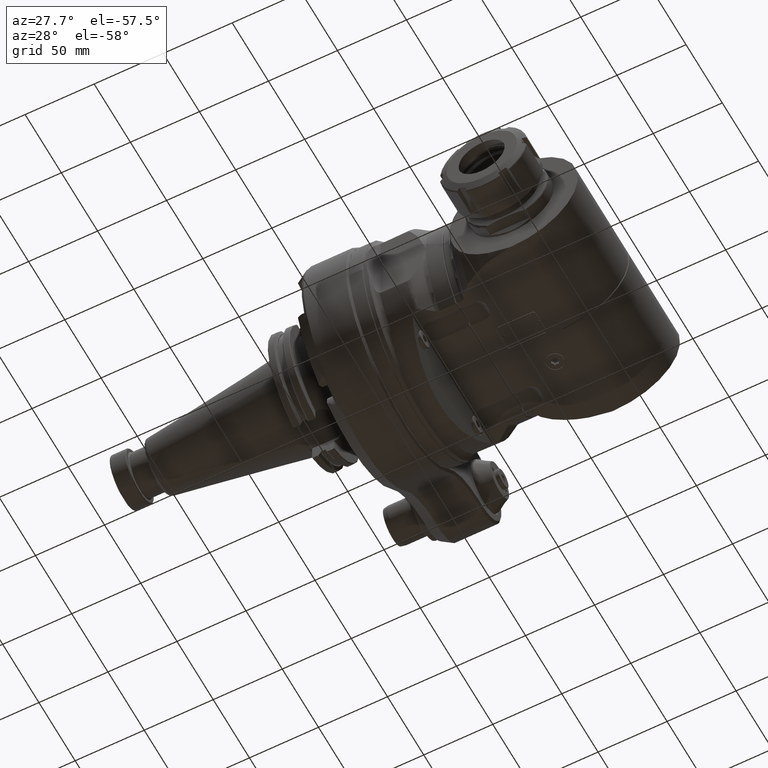
[diagram: clean part render]
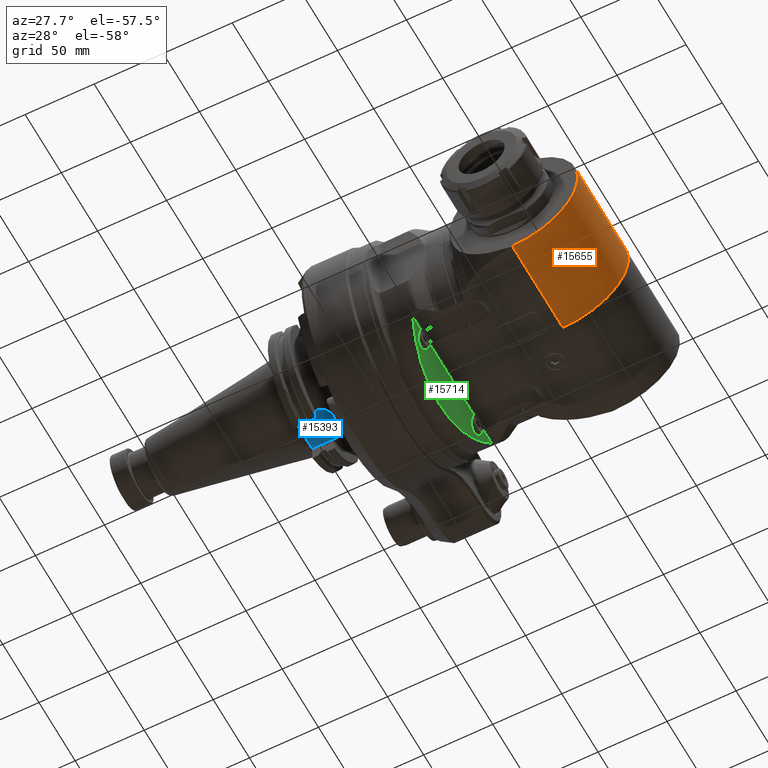
[diagram: same view with three faces highlighted in distinct colors, each labeled with its STEP entity id]
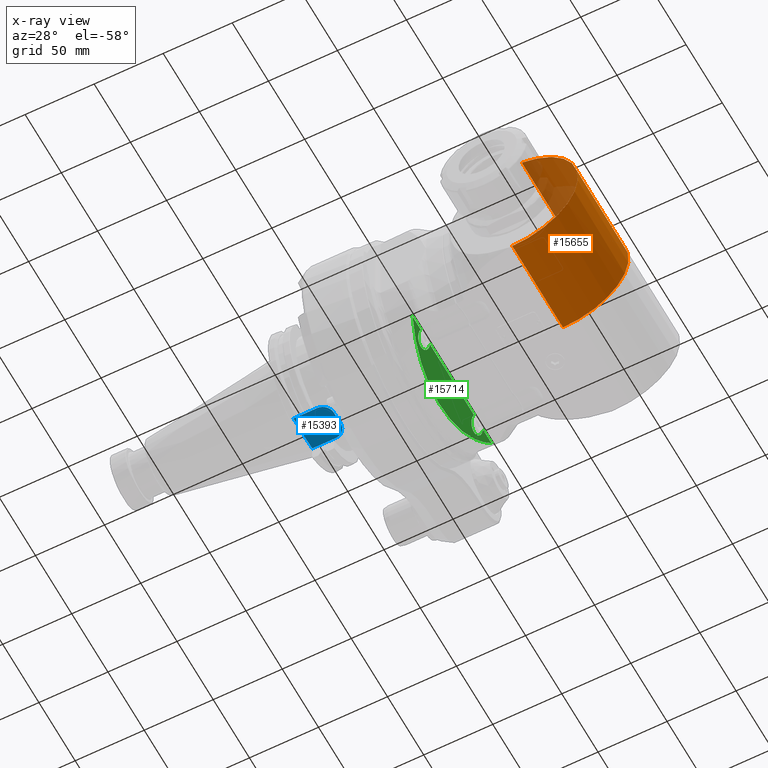
[diagram: x-ray of the same camera — body ghosted, the three highlighted faces saturated]
A machine part, auxiliary view with three faces highlighted in distinct colors.
The next image is the same camera in x-ray (body ghosted, the three faces saturated) — at least one of them is partly hidden behind the body in this view.
Their STEP definitions:

[orange] entity #15655 — the highlighted cylindrical surface (partial cylindrical patch) has radius 47.5 mm, axis along (-0, 1, 0).
#806=B_SPLINE_CURVE_WITH_KNOTS('',3,(#45122,#45123,#45124,#45125),
 .UNSPECIFIED.,.F.,.F.,(4,4),(1.9275566740306,2.15803045528386),
 .UNSPECIFIED.);
#1795=FACE_OUTER_BOUND('',#2705,.T.);
#2705=EDGE_LOOP('',(#13080,#13081,#13082,#13083,#13084));
#3678=LINE('',#44414,#4833);
#3729=LINE('',#45078,#4884);
#4833=VECTOR('',#20151,2.75941273032756);
#4884=VECTOR('',#20430,2.74938246345787);
#5830=CIRCLE('',#16959,1.87007874015748);
#5895=CIRCLE('',#17090,1.87007874015748);
#6997=VERTEX_POINT('',#44401);
#6998=VERTEX_POINT('',#44403);
#7001=VERTEX_POINT('',#44413);
#7119=VERTEX_POINT('',#45074);
#7132=VERTEX_POINT('',#45120);
#9067=EDGE_CURVE('',#6997,#6998,#5830,.T.);
#9072=EDGE_CURVE('',#7001,#6998,#3678,.T.);
#9248=EDGE_CURVE('',#6997,#7119,#3729,.T.);
#9265=EDGE_CURVE('',#7132,#7119,#5895,.T.);
#9266=EDGE_CURVE('',#7001,#7132,#806,.T.);
#13080=ORIENTED_EDGE('',*,*,#9072,.T.);
#13081=ORIENTED_EDGE('',*,*,#9067,.F.);
#13082=ORIENTED_EDGE('',*,*,#9248,.T.);
#13083=ORIENTED_EDGE('',*,*,#9265,.F.);
#13084=ORIENTED_EDGE('',*,*,#9266,.F.);
#15029=CYLINDRICAL_SURFACE('',#17089,1.87007874015748);
#15655=ADVANCED_FACE('',(#1795),#15029,.T.);
#16959=AXIS2_PLACEMENT_3D('',#44404,#20140,#20141);
#17089=AXIS2_PLACEMENT_3D('',#45119,#20459,#20460);
#17090=AXIS2_PLACEMENT_3D('',#45121,#20461,#20462);
#20140=DIRECTION('center_axis',(0.,-1.,-4.660711712401E-9));
#20141=DIRECTION('ref_axis',(8.76323060526197E-8,4.66071171240098E-9,-0.999999999999996));
#20151=DIRECTION('',(5.222891548276E-9,-1.,-4.50292594728E-9));
#20430=DIRECTION('',(-1.984957034589E-8,1.,1.54616593619E-9));
#20459=DIRECTION('center_axis',(0.,1.,4.660711712401E-9));
#20460=DIRECTION('ref_axis',(0.997364950748127,3.38123473227956E-10,-0.0725476051926346));
#20461=DIRECTION('center_axis',(0.,1.,4.660711712401E-9));
#20462=DIRECTION('ref_axis',(1.,0.,0.));
#44401=CARTESIAN_POINT('',(3.66141737746102,-2.77559054246517,-1.87007874661672));
#44403=CARTESIAN_POINT('',(3.93204181242814,-2.77559055980518,1.85039369794773));
#44404=CARTESIAN_POINT('Origin',(3.66141732283465,-2.7755905511811,-1.29362273907205E-8));
#44413=CARTESIAN_POINT('',(3.93204179856523,-0.0161778154491255,1.85039371399366));
#44414=CARTESIAN_POINT('',(3.93204179819764,-0.0161778294775236,1.85039371106929));
#45074=CARTESIAN_POINT('',(3.66141732287796,-0.026208079007902,-1.87007874021856));
#45078=CARTESIAN_POINT('',(3.66141737746102,-2.77559054246535,-1.87007874446968));
#45119=CARTESIAN_POINT('Origin',(3.66141732283465,-3.33070875590551,-1.55234733092441E-8));
#45120=CARTESIAN_POINT('',(4.01824516839764,-0.0262080963412362,1.83572012642716));
#45121=CARTESIAN_POINT('Origin',(3.66141732283465,-0.0262080877854764,-1.22148341701417E-10));
#45122=CARTESIAN_POINT('Ctrl Pts',(3.93204179905693,-0.0161778116157158,
1.85039371134344));
#45123=CARTESIAN_POINT('Ctrl Pts',(3.95991789949189,-0.0225720326885505,
1.84631676540058));
#45124=CARTESIAN_POINT('Ctrl Pts',(3.98855497049091,-0.0262080965568042,
1.84149131634113));
#45125=CARTESIAN_POINT('Ctrl Pts',(4.01824517245402,-0.0262080963415057,
1.83572012563913));

[blue] entity #15393 — the highlighted planar face has unit normal (0, 0, -1).
#666=B_SPLINE_CURVE_WITH_KNOTS('',3,(#36845,#36846,#36847,#36848,#36849,
#36850,#36851,#36852,#36853,#36854),.UNSPECIFIED.,.F.,.F.,(4,2,2,2,4),(1.89314637093432,
2.0992543213513,2.56948343877489,3.03971255619848,3.24582050661546),
 .UNSPECIFIED.);
#1003=PLANE('',#16622);
#1533=FACE_OUTER_BOUND('',#2420,.T.);
#2420=EDGE_LOOP('',(#11687,#11688,#11689,#11690,#11691,#11692,#11693,#11694));
#3420=LINE('',#36625,#4575);
#3447=LINE('',#36822,#4602);
#3451=LINE('',#36833,#4606);
#3452=LINE('',#36839,#4607);
#3453=LINE('',#36843,#4608);
#4575=VECTOR('',#19119,0.669291338582677);
#4602=VECTOR('',#19230,0.222002130444528);
#4606=VECTOR('',#19238,0.222002130445118);
#4607=VECTOR('',#19245,0.669291338582677);
#4608=VECTOR('',#19248,0.381889763779527);
#5680=CIRCLE('',#16623,0.31496062992126);
#5681=CIRCLE('',#16624,0.31496062992126);
#6581=VERTEX_POINT('',#36622);
#6582=VERTEX_POINT('',#36624);
#6625=VERTEX_POINT('',#36821);
#6629=VERTEX_POINT('',#36830);
#6630=VERTEX_POINT('',#36832);
#6632=VERTEX_POINT('',#36838);
#6633=VERTEX_POINT('',#36840);
#6634=VERTEX_POINT('',#36842);
#8456=EDGE_CURVE('',#6581,#6582,#3420,.T.);
#8519=EDGE_CURVE('',#6625,#6581,#3447,.T.);
#8525=EDGE_CURVE('',#6629,#6630,#3451,.T.);
#8528=EDGE_CURVE('',#6632,#6629,#3452,.T.);
#8529=EDGE_CURVE('',#6632,#6633,#5680,.T.);
#8530=EDGE_CURVE('',#6634,#6633,#3453,.T.);
#8531=EDGE_CURVE('',#6634,#6582,#5681,.T.);
#8532=EDGE_CURVE('',#6630,#6625,#666,.T.);
#11687=ORIENTED_EDGE('',*,*,#8525,.F.);
#11688=ORIENTED_EDGE('',*,*,#8528,.F.);
#11689=ORIENTED_EDGE('',*,*,#8529,.T.);
#11690=ORIENTED_EDGE('',*,*,#8530,.F.);
#11691=ORIENTED_EDGE('',*,*,#8531,.T.);
#11692=ORIENTED_EDGE('',*,*,#8456,.F.);
#11693=ORIENTED_EDGE('',*,*,#8519,.F.);
#11694=ORIENTED_EDGE('',*,*,#8532,.F.);
#15393=ADVANCED_FACE('',(#1533),#1003,.T.);
#16622=AXIS2_PLACEMENT_3D('',#36837,#19243,#19244);
#16623=AXIS2_PLACEMENT_3D('',#36841,#19246,#19247);
#16624=AXIS2_PLACEMENT_3D('',#36844,#19249,#19250);
#19119=DIRECTION('',(1.,0.,0.));
#19230=DIRECTION('',(0.,-1.,-3.515633128543E-13));
#19238=DIRECTION('',(0.,-1.,3.515633128534E-13));
#19243=DIRECTION('center_axis',(0.,0.,-1.));
#19244=DIRECTION('ref_axis',(-1.,0.,0.));
#19245=DIRECTION('',(-1.,0.,0.));
#19246=DIRECTION('center_axis',(0.,0.,-1.));
#19247=DIRECTION('ref_axis',(0.,1.,0.));
#19248=DIRECTION('',(0.,1.,0.));
#19249=DIRECTION('center_axis',(0.,0.,-1.));
#19250=DIRECTION('ref_axis',(1.,0.,0.));
#36622=CARTESIAN_POINT('',(0.125984251968504,-0.505905511811024,-1.39763779527559));
#36624=CARTESIAN_POINT('',(0.795275590551181,-0.505905511811024,-1.39763779527559));
#36625=CARTESIAN_POINT('',(0.125984251968504,-0.505905511811024,-1.39763779527559));
#36821=CARTESIAN_POINT('',(0.125984251968504,-0.28390338136815,-1.39763779527559));
#36822=CARTESIAN_POINT('',(0.125984251968504,-0.283903381366496,-1.39763779527559));
#36830=CARTESIAN_POINT('',(0.125984251968504,0.505905511811024,-1.39763779527559));
#36832=CARTESIAN_POINT('',(0.125984251968504,0.283903381366496,-1.39763779527598));
#36833=CARTESIAN_POINT('',(0.125984251968504,0.505905511811024,-1.39763779527559));
#36837=CARTESIAN_POINT('Origin',(0.823585543609842,-0.00396480111113779,
-1.39763779527559));
#36838=CARTESIAN_POINT('',(0.795275590551181,0.505905511811024,-1.39763779527559));
#36839=CARTESIAN_POINT('',(0.795275590551181,0.505905511811024,-1.39763779527559));
#36840=CARTESIAN_POINT('',(1.11023622047244,0.190944881889764,-1.39763779527559));
#36841=CARTESIAN_POINT('Origin',(0.795275590551181,0.190944881889764,-1.39763779527559));
#36842=CARTESIAN_POINT('',(1.11023622047244,-0.190944881889764,-1.39763779527559));
#36843=CARTESIAN_POINT('',(1.11023622047244,-0.190944881889764,-1.39763779527559));
#36844=CARTESIAN_POINT('Origin',(0.795275590551181,-0.190944881889764,-1.39763779527559));
#36845=CARTESIAN_POINT('Ctrl Pts',(0.125984251968504,0.283903381368134,
-1.39763779527559));
#36846=CARTESIAN_POINT('Ctrl Pts',(0.125984251968476,0.256855093911755,
-1.39763779527559));
#36847=CARTESIAN_POINT('Ctrl Pts',(0.125156491548293,0.224407705682319,
-1.39763779527559));
#36848=CARTESIAN_POINT('Ctrl Pts',(0.122184845114601,0.135699320002802,
-1.39763779527559));
#36849=CARTESIAN_POINT('Ctrl Pts',(0.119146267029905,0.0617098579297933,
-1.39763779527559));
#36850=CARTESIAN_POINT('Ctrl Pts',(0.119146267029905,-0.0617098579297933,
-1.39763779527559));
#36851=CARTESIAN_POINT('Ctrl Pts',(0.122184845114601,-0.135699320002802,
-1.39763779527559));
#36852=CARTESIAN_POINT('Ctrl Pts',(0.125156491548293,-0.224407705682319,
-1.39763779527559));
#36853=CARTESIAN_POINT('Ctrl Pts',(0.125984251968504,-0.256855093911755,
-1.39763779527559));
#36854=CARTESIAN_POINT('Ctrl Pts',(0.125984251968504,-0.283903381368134,
-1.39763779527559));

[green] entity #15714 — the highlighted planar face has unit normal (-0.9397, -0, 0.342).
#30=ELLIPSE('',#17176,3.10036043949679,2.91338582677165);
#31=ELLIPSE('',#17190,0.282803148197342,0.265748031496063);
#32=ELLIPSE('',#17191,0.282803148197342,0.265748031496063);
#33=ELLIPSE('',#17195,0.282803148197342,0.265748031496063);
#34=ELLIPSE('',#17196,0.282803148197342,0.265748031496063);
#1123=PLANE('',#17194);
#1854=FACE_OUTER_BOUND('',#2767,.T.);
#2767=EDGE_LOOP('',(#13360,#13361,#13362,#13363,#13364,#13365,#13366,#13367));
#3773=LINE('',#45563,#4928);
#3774=LINE('',#45565,#4929);
#3775=LINE('',#45570,#4930);
#4928=VECTOR('',#20710,0.44780824431811);
#4929=VECTOR('',#20711,0.44780824431811);
#4930=VECTOR('',#20716,2.39059768817835);
#7179=VERTEX_POINT('',#45410);
#7180=VERTEX_POINT('',#45421);
#7194=VERTEX_POINT('',#45519);
#7195=VERTEX_POINT('',#45521);
#7198=VERTEX_POINT('',#45551);
#7200=VERTEX_POINT('',#45564);
#7201=VERTEX_POINT('',#45566);
#7202=VERTEX_POINT('',#45568);
#9361=EDGE_CURVE('',#7180,#7179,#30,.T.);
#9383=EDGE_CURVE('',#7195,#7194,#31,.T.);
#9388=EDGE_CURVE('',#7194,#7198,#32,.T.);
#9390=EDGE_CURVE('',#7180,#7198,#3773,.T.);
#9391=EDGE_CURVE('',#7200,#7179,#3774,.T.);
#9392=EDGE_CURVE('',#7200,#7201,#33,.T.);
#9393=EDGE_CURVE('',#7201,#7202,#34,.T.);
#9394=EDGE_CURVE('',#7195,#7202,#3775,.T.);
#13360=ORIENTED_EDGE('',*,*,#9383,.T.);
#13361=ORIENTED_EDGE('',*,*,#9388,.T.);
#13362=ORIENTED_EDGE('',*,*,#9390,.F.);
#13363=ORIENTED_EDGE('',*,*,#9361,.T.);
#13364=ORIENTED_EDGE('',*,*,#9391,.F.);
#13365=ORIENTED_EDGE('',*,*,#9392,.T.);
#13366=ORIENTED_EDGE('',*,*,#9393,.T.);
#13367=ORIENTED_EDGE('',*,*,#9394,.F.);
#15714=ADVANCED_FACE('',(#1854),#1123,.F.);
#17176=AXIS2_PLACEMENT_3D('',#45422,#20667,#20668);
#17190=AXIS2_PLACEMENT_3D('',#45522,#20700,#20701);
#17191=AXIS2_PLACEMENT_3D('',#45558,#20702,#20703);
#17194=AXIS2_PLACEMENT_3D('',#45562,#20708,#20709);
#17195=AXIS2_PLACEMENT_3D('',#45567,#20712,#20713);
#17196=AXIS2_PLACEMENT_3D('',#45569,#20714,#20715);
#20667=DIRECTION('center_axis',(0.939692620785897,0.,-0.342020143325699));
#20668=DIRECTION('ref_axis',(0.342020143325699,-1.12785771207228E-16,0.939692620785897));
#20700=DIRECTION('center_axis',(-0.939692620785897,0.,0.342020143325699));
#20701=DIRECTION('ref_axis',(0.342020143325699,0.,0.939692620785897));
#20702=DIRECTION('center_axis',(-0.939692620785897,0.,0.342020143325699));
#20703=DIRECTION('ref_axis',(0.342020143325699,0.,0.939692620785897));
#20708=DIRECTION('center_axis',(-0.939692620785897,0.,0.342020143325699));
#20709=DIRECTION('ref_axis',(-0.342020143325699,0.,-0.939692620785897));
#20710=DIRECTION('',(0.,1.,1.124441607722E-14));
#20711=DIRECTION('',(3.810607670613E-14,1.,1.086960220798E-13));
#20712=DIRECTION('center_axis',(-0.939692620785897,0.,0.342020143325699));
#20713=DIRECTION('ref_axis',(0.342020143325699,0.,0.939692620785897));
#20714=DIRECTION('center_axis',(-0.939692620785897,0.,0.342020143325699));
#20715=DIRECTION('ref_axis',(0.342020143325699,0.,0.939692620785897));
#20716=DIRECTION('',(0.,1.,0.));
#45410=CARTESIAN_POINT('',(0.481970869437795,2.14297333144685,-1.97369761522441));
#45421=CARTESIAN_POINT('',(0.481970869437795,-2.14297333144685,-1.97369761522441));
#45422=CARTESIAN_POINT('Origin',(1.20033805282151,0.,0.));
#45519=CARTESIAN_POINT('',(0.449101614498212,-1.71097999710512,-2.06400515096457));
#45521=CARTESIAN_POINT('',(0.481970869437795,-1.19529884408937,-1.97369761522441));
#45522=CARTESIAN_POINT('Origin',(0.449101614498212,-1.44523196560906,-2.06400515096457));
#45551=CARTESIAN_POINT('',(0.481970869437795,-1.69516508712874,-1.97369761522441));
#45558=CARTESIAN_POINT('Origin',(0.449101614498212,-1.44523196560906,-2.06400515096457));
#45562=CARTESIAN_POINT('Origin',(0.519685055670079,-3.63779537007874,-1.87007874015748));
#45563=CARTESIAN_POINT('',(0.481970869437795,-2.14297333144685,-1.97369761522441));
#45564=CARTESIAN_POINT('',(0.481970869437795,1.69516508712874,-1.97369761522441));
#45565=CARTESIAN_POINT('',(0.481970869437795,1.69516508712874,-1.97369761522441));
#45566=CARTESIAN_POINT('',(0.449101614498212,1.17948393411299,-2.06400515096457));
#45567=CARTESIAN_POINT('Origin',(0.449101614498212,1.44523196560906,-2.06400515096457));
#45568=CARTESIAN_POINT('',(0.481970869437795,1.19529884408937,-1.97369761522441));
#45569=CARTESIAN_POINT('Origin',(0.449101614498212,1.44523196560906,-2.06400515096457));
#45570=CARTESIAN_POINT('',(0.481970869437795,-1.19529884408937,-1.97369761522441));